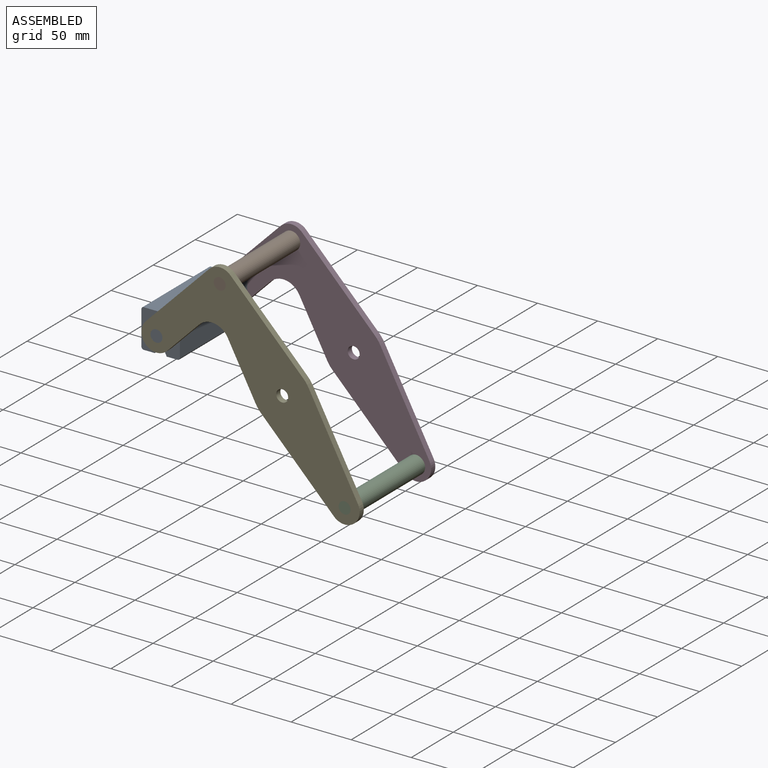
[diagram: assembled view]
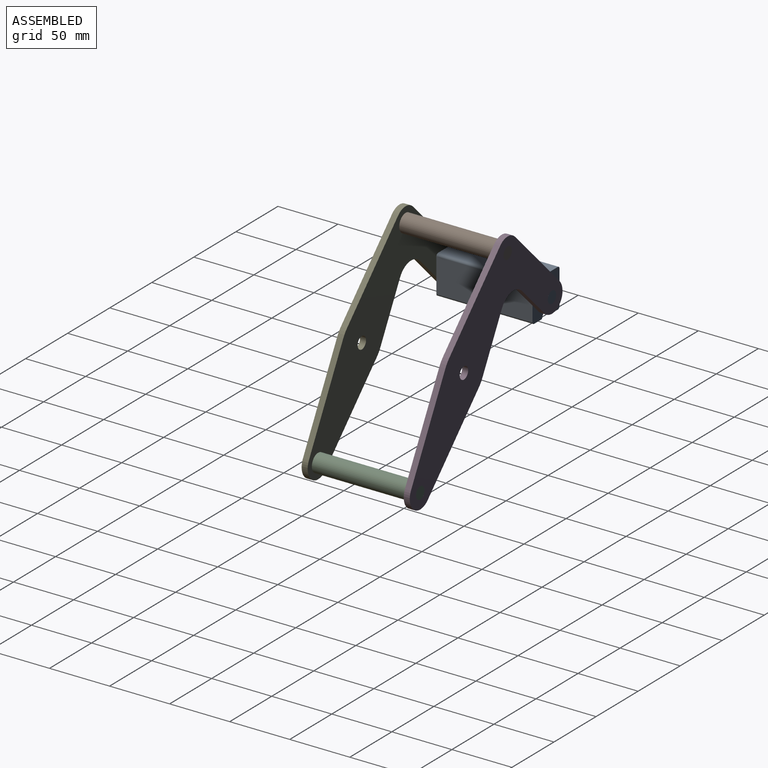
[diagram: assembled view, second angle]
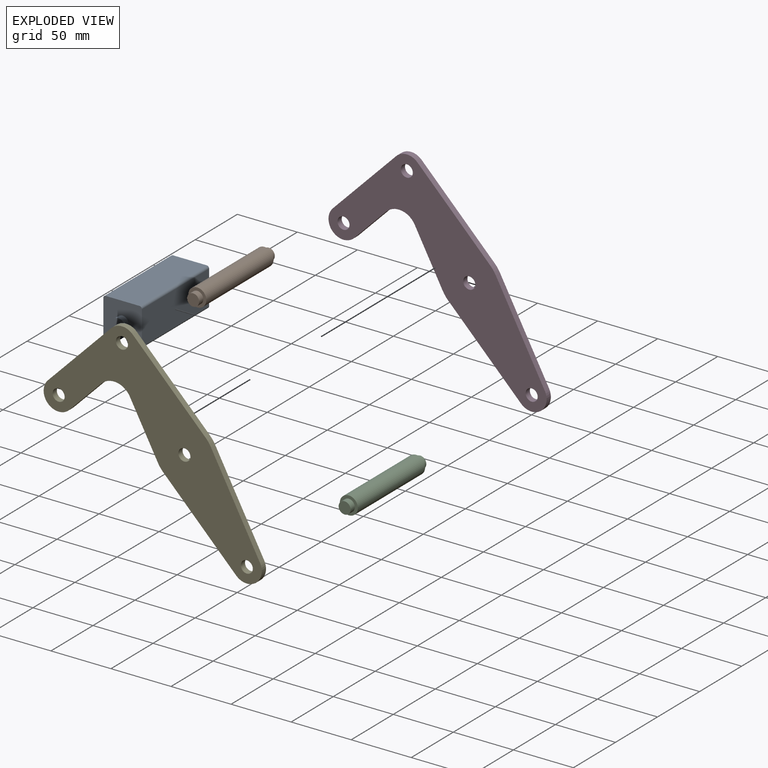
[diagram: exploded view]
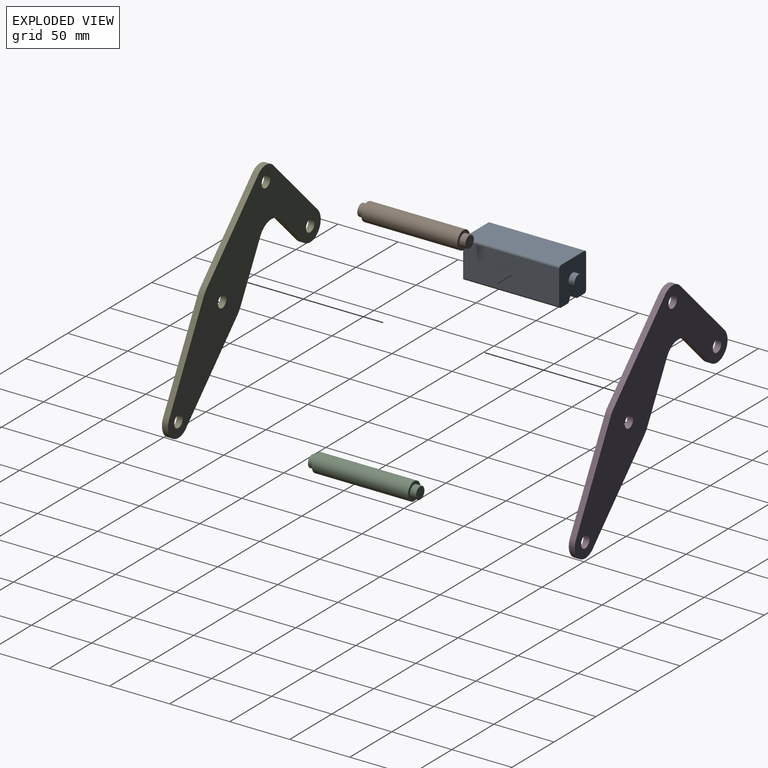
[diagram: exploded view, second angle]
ASSEMBLY  parts=5 mates=3
PART A: 18 faces, bbox 32.1x90x32.1 mm
  f0: plane 80x6.42mm, normal (-0.89,0,-0.45), area 574.4mm2, adj f6,f7,f10,f13
  f1: plane 80x6.42mm, normal (0.89,0,-0.45), area 574.4mm2, adj f2,f7,f10,f13
  f2: plane 80x9.04mm, normal (0,0,-1), area 723.1mm2, adj f1,f7,f10,f14
  f3: plane 80x28.08mm, normal (-1,0,0), area 2246.2mm2, adj f7,f10,f14,f15
  f4: plane 80x28.08mm, normal (0,0,1), area 2246.2mm2, adj f7,f10,f15,f16
  f5: plane 80x28.08mm, normal (1,0,0), area 2246.2mm2, adj f7,f10,f16,f17
  f6: plane 80x9.04mm, normal (0,0,-1), area 723.1mm2, adj f0,f7,f10,f17
  f7: plane 32.08x32.08mm, normal (0,-1,0), area 900.6mm2, adj f0,f1,f2,f3,f4,f5,f6,f9
  f8: plane 10x10mm, normal (0,-1,0), area 78.5mm2, adj f9
  f9: cylinder r=5mm len=10mm, axis (0,1,0), area 157.1mm2, adj f7,f8
  f10: plane 32.08x32.08mm, normal (0,1,0), area 900.6mm2, adj f0,f1,f2,f3,f4,f5,f6,f12
  f11: plane 10x10mm, normal (0,1,0), area 78.5mm2, adj f12
  f12: cylinder r=5mm len=10mm, axis (0,-1,0), area 157.1mm2, adj f10,f11
  f13: cylinder r=2mm len=80mm, axis (0,1,0), area 354.3mm2, adj f0,f1,f7,f10
  f14: cylinder r=2mm len=80mm, axis (0,1,0), area 251.3mm2, adj f2,f3,f7,f10
  f15: cylinder r=2mm len=80mm, axis (0,-1,0), area 251.3mm2, adj f3,f4,f7,f10
  f16: cylinder r=2mm len=80mm, axis (0,1,0), area 251.3mm2, adj f4,f5,f7,f10
  f17: cylinder r=2mm len=80mm, axis (0,-1,0), area 251.3mm2, adj f5,f6,f7,f10
PART B: 7 faces, bbox 15x90x15 mm
  f0: cylinder r=7.5mm len=80mm, axis (0,-1,0), area 3769.9mm2, adj f2,f5
  f1: cylinder r=5mm len=10mm, axis (0,1,0), area 157.1mm2, adj f2,f3
  f2: plane 15x15mm, normal (0,-1,0), area 98.2mm2, adj f0,f1
  f3: plane 10x10mm, normal (0,-1,0), area 78.5mm2, adj f1
  f4: cylinder r=5mm len=10mm, axis (0,-1,0), area 157.1mm2, adj f5,f6
  f5: plane 15x15mm, normal (0,1,0), area 98.2mm2, adj f0,f4
  f6: plane 10x10mm, normal (0,1,0), area 78.5mm2, adj f4
PART C: same geometry as B
PART D: 18 faces, bbox 181.7x5x165.8 mm
  f0: plane 43.49x23.35mm, normal (-0.88,0,-0.47), area 246.8mm2, adj f1,f14,f16,f17
  f1: cylinder r=25mm len=5.75mm, axis (0,1,0), area 35.8mm2, adj f0,f2,f16,f17
  f2: plane 61.6x60.87mm, normal (-0.71,0,-0.7), area 433mm2, adj f1,f3,f16,f17
  f3: cylinder r=12.5mm len=21.39mm, axis (0,1,0), area 178.4mm2, adj f2,f4,f16,f17
  f4: plane 76.3x40.96mm, normal (0.88,0,0.47), area 433mm2, adj f3,f5,f16,f17
  f5: cylinder r=25mm len=5.75mm, axis (0,1,0), area 35.8mm2, adj f4,f6,f16,f17
  f6: plane 61.6x60.87mm, normal (0.71,0,0.7), area 433mm2, adj f5,f7,f16,f17
  f7: cylinder r=12.5mm len=17.78mm, axis (0,1,0), area 98.9mm2, adj f6,f8,f16,f17
  f8: plane 53.35x52.71mm, normal (-0.71,0,0.7), area 375mm2, adj f7,f9,f16,f17
  f9: cylinder r=12.5mm len=21.39mm, axis (0,1,0), area 196.3mm2, adj f8,f10,f16,f17
  f10: plane 26.86x26.54mm, normal (0.71,0,-0.7), area 188.8mm2, adj f9,f14,f16,f17
  f11: cylinder r=5mm len=10mm, axis (0,1,0), area 157.1mm2, adj f16,f17
  f12: cylinder r=5mm len=10mm, axis (0,1,0), area 157.1mm2, adj f16,f17
  f13: cylinder r=5mm len=10mm, axis (0,1,0), area 157.1mm2, adj f16,f17
  f14: cylinder r=15mm len=23.89mm, axis (0,1,0), area 140.2mm2, adj f0,f10,f16,f17
  f15: cylinder r=5mm len=10mm, axis (0,1,0), area 157.1mm2, adj f16,f17
  f16: plane 181.66x165.78mm, normal (0,-1,0), area 8710.1mm2, adj f0,f1,f2,f3,f4,f5,f6,f7
  f17: plane 181.66x165.78mm, normal (0,1,0), area 8710.1mm2, adj f0,f1,f2,f3,f4,f5,f6,f7
PART E: same geometry as D
PLACE A t=(0,-20,0)mm
PLACE B t=(0,-20,0)mm
PLACE C t=(103.95,-20,-140.78)mm
PLACE D t=(0,65,0)mm
PLACE E t=(0,-20,0)mm fixed
MATE revolute E.f9 <-> A.f9  axis (0,-1,0) through (-104.69,-25,17.04)mm
MATE fastened C.f0 <-> D.f3  axis (0,1,0) through (51.98,65,-70.39)mm
MATE fastened D.f7 <-> B.f0  axis (0,1,0) through (-51.98,65,70.39)mm
